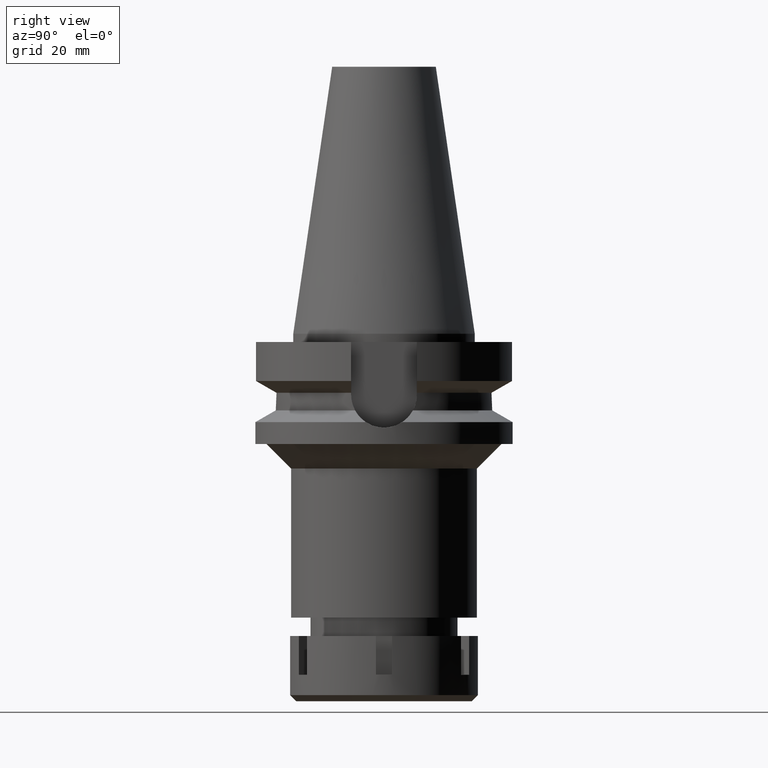
[diagram: clean part render]
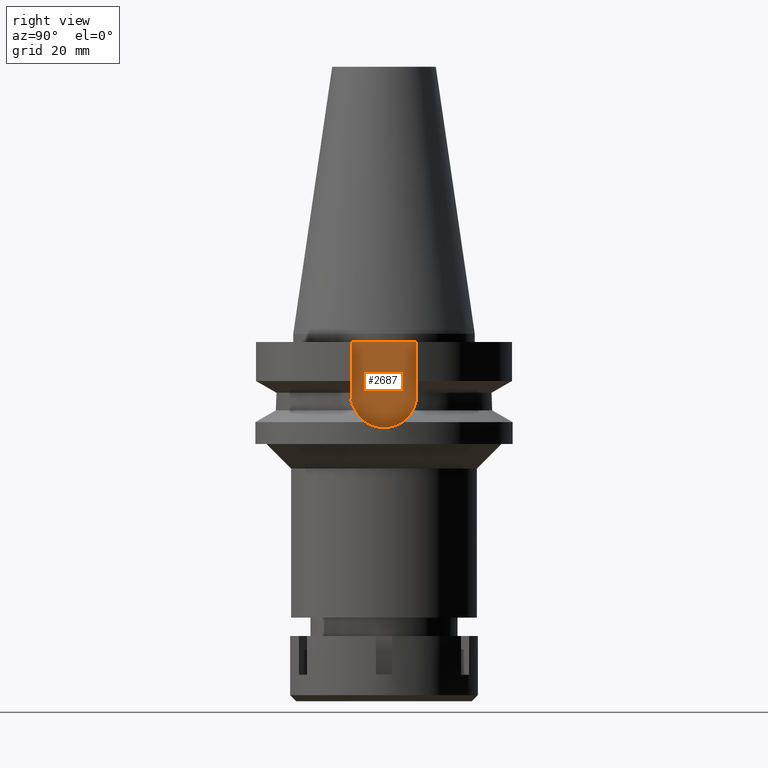
[diagram: same view with one face highlighted and labeled with its STEP entity id]
A machine part, right view. The second image highlights one B-rep face of the part: STEP entity #2687.
In plain terms, the highlighted planar face has unit normal (1, 0, 0).
Its self-contained STEP definition (entity closure, byte-faithful):
#23 = PLANE ( 'NONE',  #3044 ) ;
#55 = DIRECTION ( 'NONE',  ( 0.0000000000000000000, 0.0000000000000000000, -1.000000000000000000 ) ) ;
#60 = DIRECTION ( 'NONE',  ( 0.0000000000000000000, -1.000000000000000000, 0.0000000000000000000 ) ) ;
#140 = ORIENTED_EDGE ( 'NONE', *, *, #2061, .F. ) ;
#306 = CARTESIAN_POINT ( 'NONE',  ( 22.50000000000000000, 0.0000000000000000000, 0.0000000000000000000 ) ) ;
#407 = ORIENTED_EDGE ( 'NONE', *, *, #1391, .F. ) ;
#444 = LINE ( 'NONE', #1526, #956 ) ;
#537 = CARTESIAN_POINT ( 'NONE',  ( 22.50000000000000000, 0.0000000000000000000, -14.94999999999999929 ) ) ;
#590 = LINE ( 'NONE', #633, #3219 ) ;
#603 = ORIENTED_EDGE ( 'NONE', *, *, #2688, .T. ) ;
#633 = CARTESIAN_POINT ( 'NONE',  ( 22.50000000000000000, 8.050000000000000711, -2.000000000000000000 ) ) ;
#759 = DIRECTION ( 'NONE',  ( 0.0000000000000000000, 0.0000000000000000000, 1.000000000000000000 ) ) ;
#875 = DIRECTION ( 'NONE',  ( -1.000000000000000000, 0.0000000000000000000, 0.0000000000000000000 ) ) ;
#935 = CARTESIAN_POINT ( 'NONE',  ( 22.50000000000000000, -8.050000000000000711, -2.000000000000000000 ) ) ;
#956 = VECTOR ( 'NONE', #759, 1000.000000000000000 ) ;
#1033 = CARTESIAN_POINT ( 'NONE',  ( 22.50000000000000000, 8.050000000000000711, -2.000000000000000000 ) ) ;
#1053 = DIRECTION ( 'NONE',  ( 0.0000000000000000000, 0.0000000000000000000, -1.000000000000000000 ) ) ;
#1178 = CARTESIAN_POINT ( 'NONE',  ( 22.50000000000000000, 8.050000000000000711, -2.000000000000000000 ) ) ;
#1315 = VERTEX_POINT ( 'NONE', #1178 ) ;
#1391 = EDGE_CURVE ( 'NONE', #2762, #2100, #1807, .T. ) ;
#1526 = CARTESIAN_POINT ( 'NONE',  ( 22.50000000000000000, -8.050000000000000711, -14.94999999999999929 ) ) ;
#1807 = CIRCLE ( 'NONE', #2333, 8.050000000000000711 ) ;
#2061 = EDGE_CURVE ( 'NONE', #2100, #3467, #444, .T. ) ;
#2100 = VERTEX_POINT ( 'NONE', #2634 ) ;
#2274 = DIRECTION ( 'NONE',  ( 0.0000000000000000000, 1.000000000000000000, 0.0000000000000000000 ) ) ;
#2311 = VECTOR ( 'NONE', #1053, 1000.000000000000000 ) ;
#2333 = AXIS2_PLACEMENT_3D ( 'NONE', #537, #875, #55 ) ;
#2431 = LINE ( 'NONE', #1033, #2311 ) ;
#2464 = FACE_OUTER_BOUND ( 'NONE', #3226, .T. ) ;
#2501 = DIRECTION ( 'NONE',  ( 1.000000000000000000, 0.0000000000000000000, 0.0000000000000000000 ) ) ;
#2634 = CARTESIAN_POINT ( 'NONE',  ( 22.50000000000000000, -8.050000000000000711, -14.94999999999999929 ) ) ;
#2687 = ADVANCED_FACE ( 'NONE', ( #2464 ), #23, .T. ) ;
#2688 = EDGE_CURVE ( 'NONE', #1315, #3467, #590, .T. ) ;
#2762 = VERTEX_POINT ( 'NONE', #2810 ) ;
#2810 = CARTESIAN_POINT ( 'NONE',  ( 22.50000000000000000, 8.050000000000000711, -14.94999999999999929 ) ) ;
#3044 = AXIS2_PLACEMENT_3D ( 'NONE', #306, #2501, #2274 ) ;
#3077 = ORIENTED_EDGE ( 'NONE', *, *, #3148, .F. ) ;
#3148 = EDGE_CURVE ( 'NONE', #1315, #2762, #2431, .T. ) ;
#3219 = VECTOR ( 'NONE', #60, 1000.000000000000000 ) ;
#3226 = EDGE_LOOP ( 'NONE', ( #140, #407, #3077, #603 ) ) ;
#3467 = VERTEX_POINT ( 'NONE', #935 ) ;